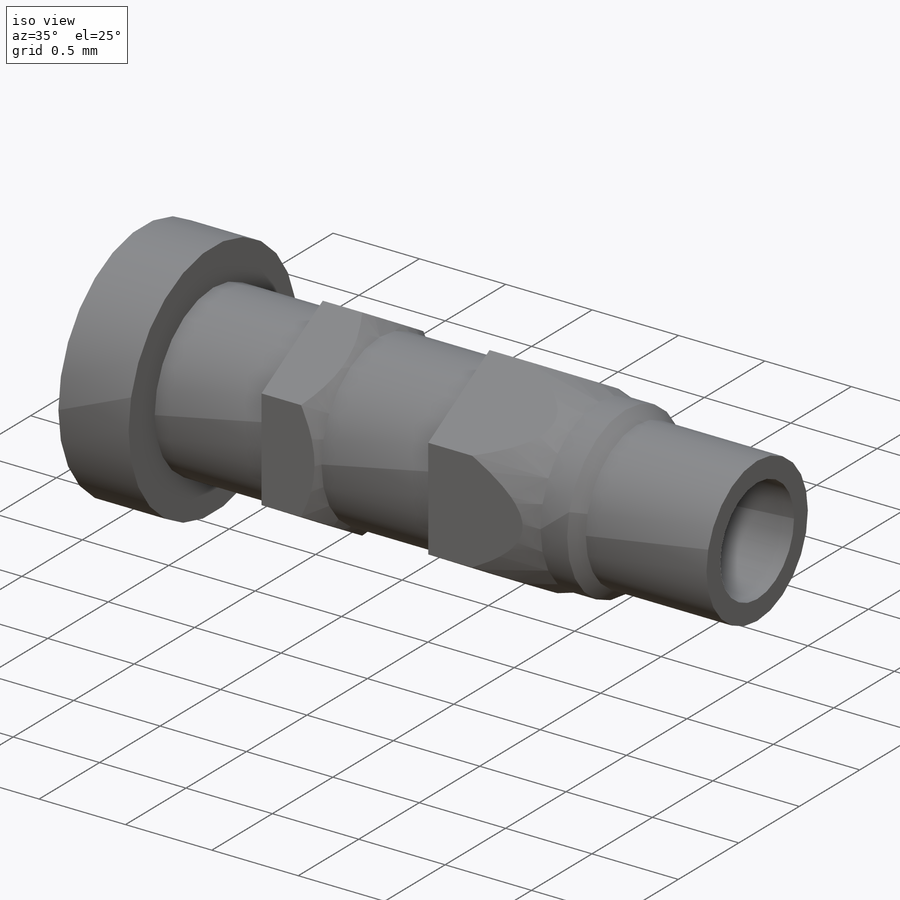
[diagram: iso view]
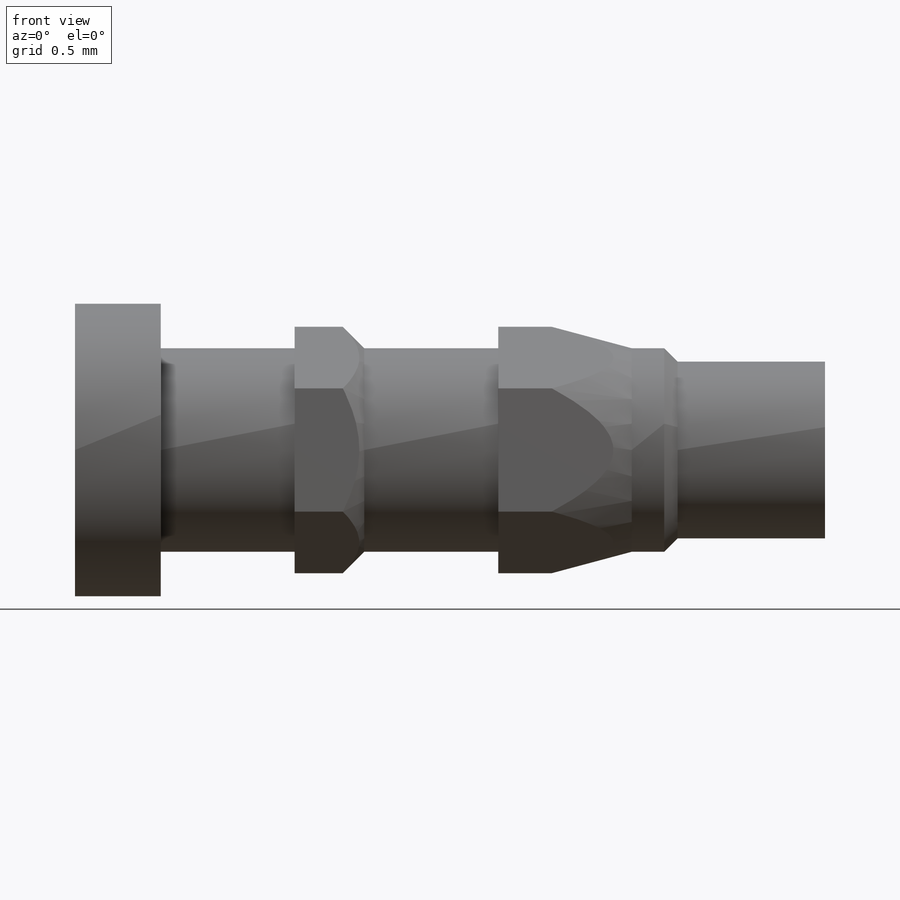
[diagram: front view]
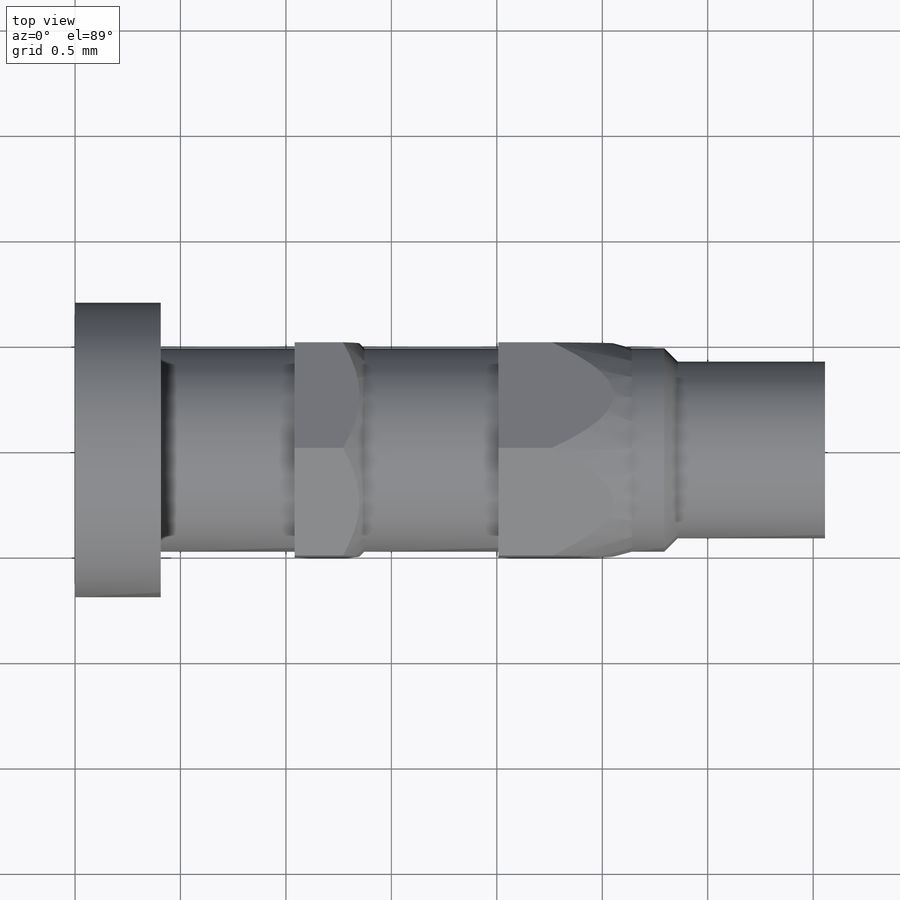
[diagram: top view]
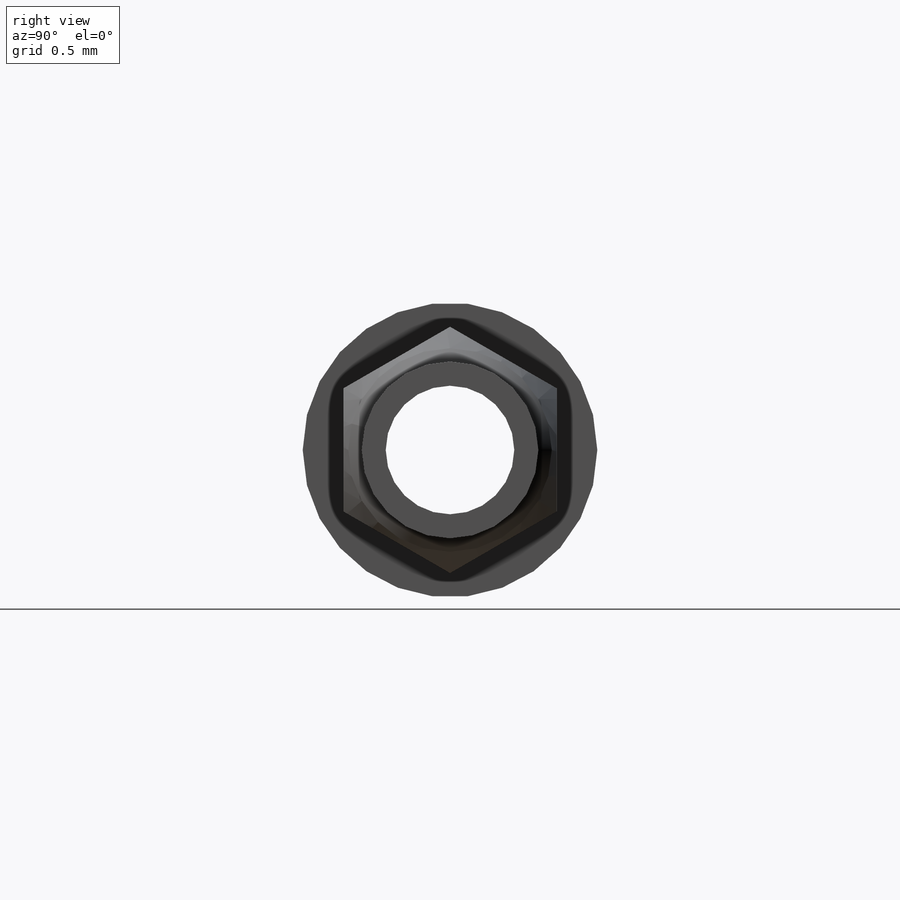
[diagram: right view]
SOLIDWORKS PART (.sldprt)
format: sldprt  version: not decoded by parser v0  size: 306,176 bytes
history: native  units: mm
features: sketch x6, hole x2, material x1, revolve x1, extrude x1 (+13 scaffold rows collapsed; 6 parser-record rows omitted)
feature tree (30):
  scaffold x13  (default folders/planes/origin — collapsed)
  material  "Brass Alloy 385"
  sketch  "Sketch1"  dims[c1.L=3.556mm c1.D2=0.4191mm c1.D3=0.6985mm c1.D4=0.4826mm c1.K=0.4064mm c1.S=0.635mm c1.D8=2.794mm c1.P2=45.0deg c1.D10=15.0deg c1.X=0.254mm c2.D4=0.4826mm c2.D13=~0.633176mm c2.D10=0.1016mm c2.P3=15.0deg c3.D13=0.3302mm c3.O=2.794mm c3.C=1.397mm c3.D=0.9652mm c3.H=0.8382mm c3.T=2.0066mm c3.E=1.1684mm c3.S =0.635mm]
  revolve  "RevolutionAngle1"  Angle=360deg
  hole  "Hole1"  [1 undecoded]
  sketch  "Sketch3"
  sketch  "Sketch2"  dims[A1=0.7874mm N=2.286mm B=1.016mm P1=60.0deg Drill Angle=118.0deg]
  hole  "Hole2"  Depth=3.556mm  [1 undecoded]
  sketch  "3DSketch1"
  sketch  "Sketch7"  dims[A2=0.6096mm Depth=3.556mm]
  parser-record x6  (decoder bookkeeping rows leaked as tree rows — omitted from the tree; the rows remain in map.json)
  sketch  "Sketch6"
  extrude  "ExtrusionBlind1"  Depth=1.6764mm
decode coverage: 6 of 10 modeling features carry decoded parameters
note: ~ marks probable driven/reference dimensions
note: 2 parameter values undecoded
note: suppression state not decoded; provenance and decode notes live in map.json
